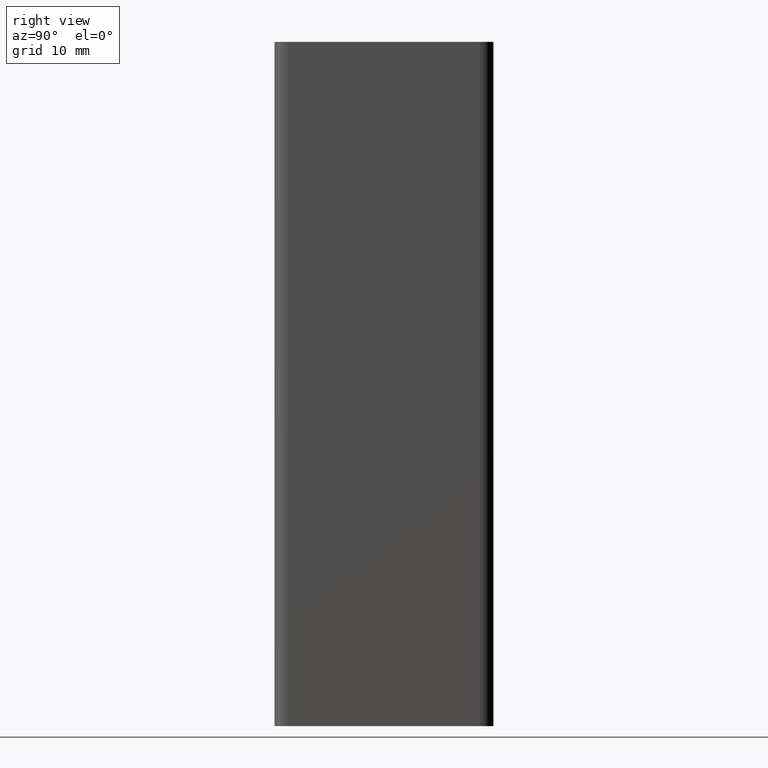
[diagram: clean part render]
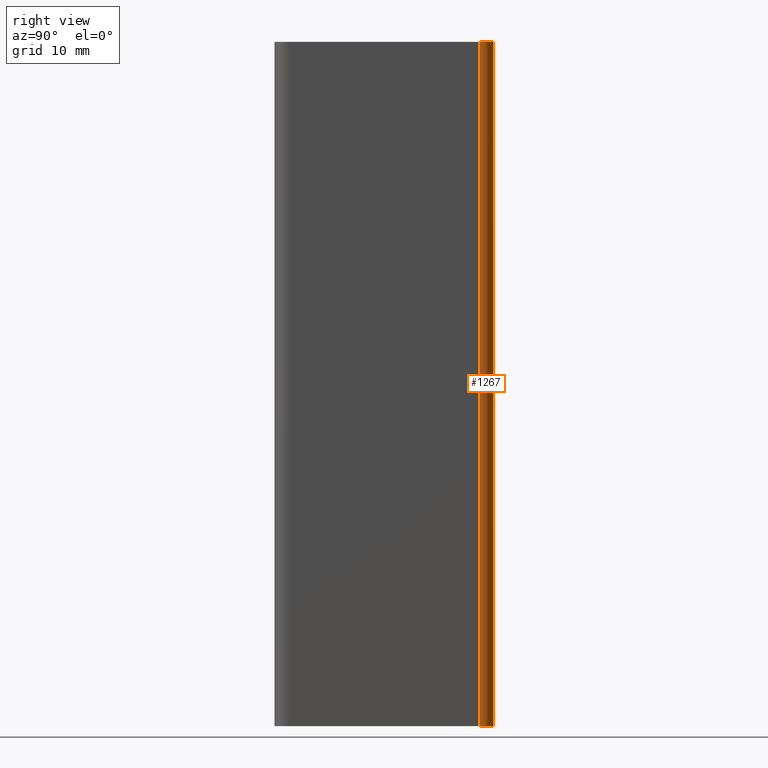
[diagram: same view with one face highlighted and labeled with its STEP entity id]
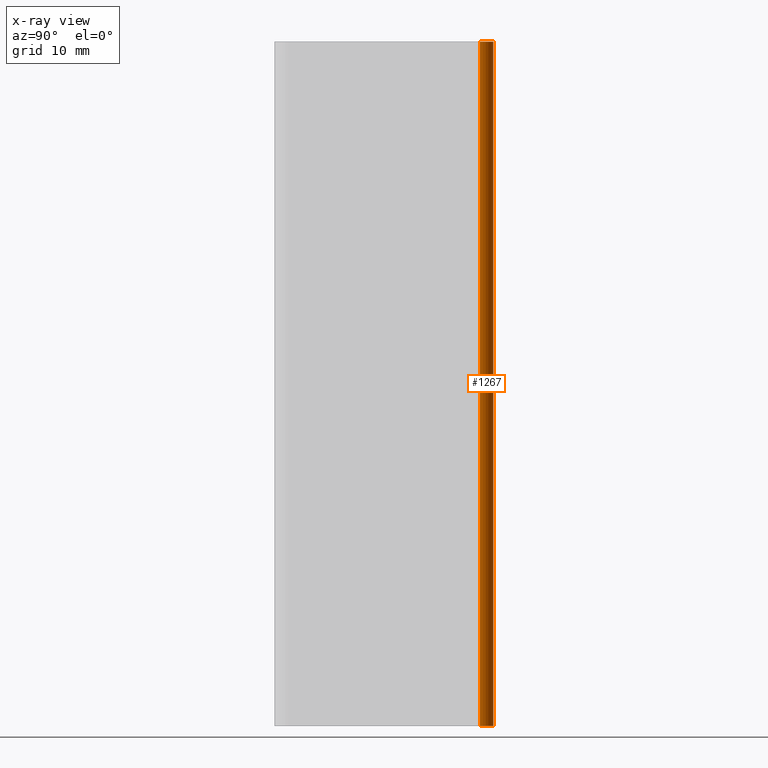
[diagram: x-ray of the same camera — body ghosted, the highlighted face saturated]
A machine part, right view. The second image highlights one B-rep face of the part: STEP entity #1267.
The next image is the same camera in x-ray: the body ghosted, the highlighted face saturated — about 0% of this face is hidden behind the body in this view.
In plain terms, the highlighted cylindrical surface (edge-blend (fillet) strip) has radius 2 mm, axis along (0, 0, 1).
Its self-contained STEP definition (entity closure, byte-faithful):
#114=FACE_OUTER_BOUND('',#182,.T.);
#182=EDGE_LOOP('',(#1099,#1100,#1101,#1102));
#300=LINE('',#2111,#423);
#309=LINE('',#2140,#432);
#423=VECTOR('',#1730,100.);
#432=VECTOR('',#1761,100.);
#491=CIRCLE('',#1385,2.);
#496=CIRCLE('',#1394,2.);
#610=VERTEX_POINT('',#2108);
#611=VERTEX_POINT('',#2110);
#613=VERTEX_POINT('',#2116);
#620=VERTEX_POINT('',#2139);
#786=EDGE_CURVE('',#611,#610,#300,.T.);
#790=EDGE_CURVE('',#610,#613,#491,.T.);
#801=EDGE_CURVE('',#620,#613,#309,.T.);
#802=EDGE_CURVE('',#611,#620,#496,.T.);
#1099=ORIENTED_EDGE('',*,*,#790,.T.);
#1100=ORIENTED_EDGE('',*,*,#801,.F.);
#1101=ORIENTED_EDGE('',*,*,#802,.F.);
#1102=ORIENTED_EDGE('',*,*,#786,.T.);
#1206=CYLINDRICAL_SURFACE('',#1393,2.);
#1267=ADVANCED_FACE('',(#114),#1206,.T.);
#1385=AXIS2_PLACEMENT_3D('',#2118,#1737,#1738);
#1393=AXIS2_PLACEMENT_3D('',#2138,#1759,#1760);
#1394=AXIS2_PLACEMENT_3D('',#2141,#1762,#1763);
#1730=DIRECTION('',(0.,0.,1.));
#1737=DIRECTION('center_axis',(0.,0.,-1.));
#1738=DIRECTION('ref_axis',(-1.,-1.11022302462516E-15,0.));
#1759=DIRECTION('center_axis',(0.,0.,1.));
#1760=DIRECTION('ref_axis',(-1.,-1.11022302462516E-15,0.));
#1761=DIRECTION('',(0.,0.,1.));
#1762=DIRECTION('center_axis',(0.,0.,-1.));
#1763=DIRECTION('ref_axis',(-1.,-1.11022302462516E-15,0.));
#2108=CARTESIAN_POINT('',(8.,20.,100.));
#2110=CARTESIAN_POINT('',(8.,20.,0.));
#2111=CARTESIAN_POINT('',(8.,20.,0.));
#2116=CARTESIAN_POINT('',(10.,18.,100.));
#2118=CARTESIAN_POINT('Origin',(8.,18.,100.));
#2138=CARTESIAN_POINT('Origin',(8.,18.,0.));
#2139=CARTESIAN_POINT('',(10.,18.,0.));
#2140=CARTESIAN_POINT('',(10.,18.,0.));
#2141=CARTESIAN_POINT('Origin',(8.,18.,0.));